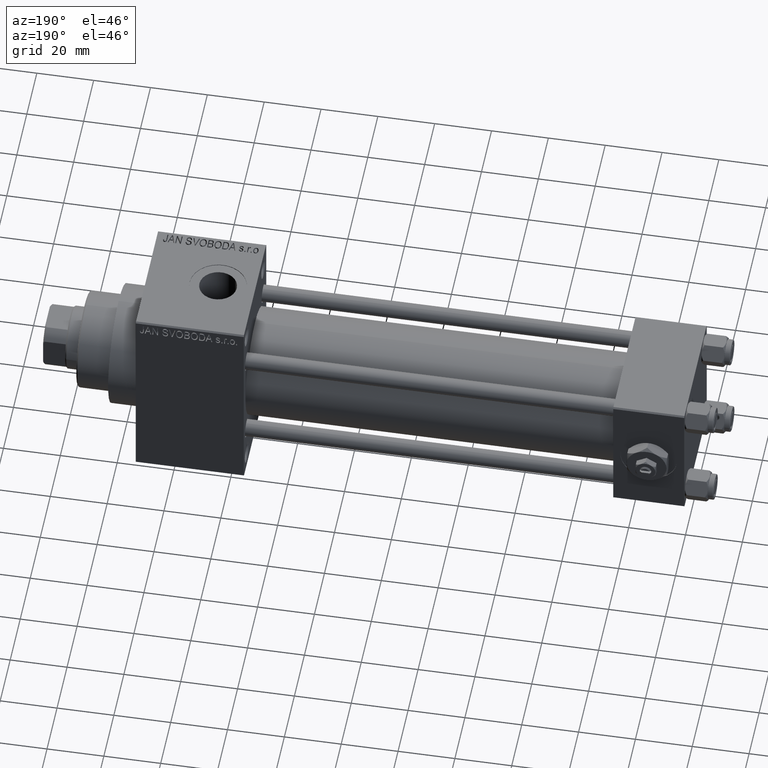
[diagram: clean part render]
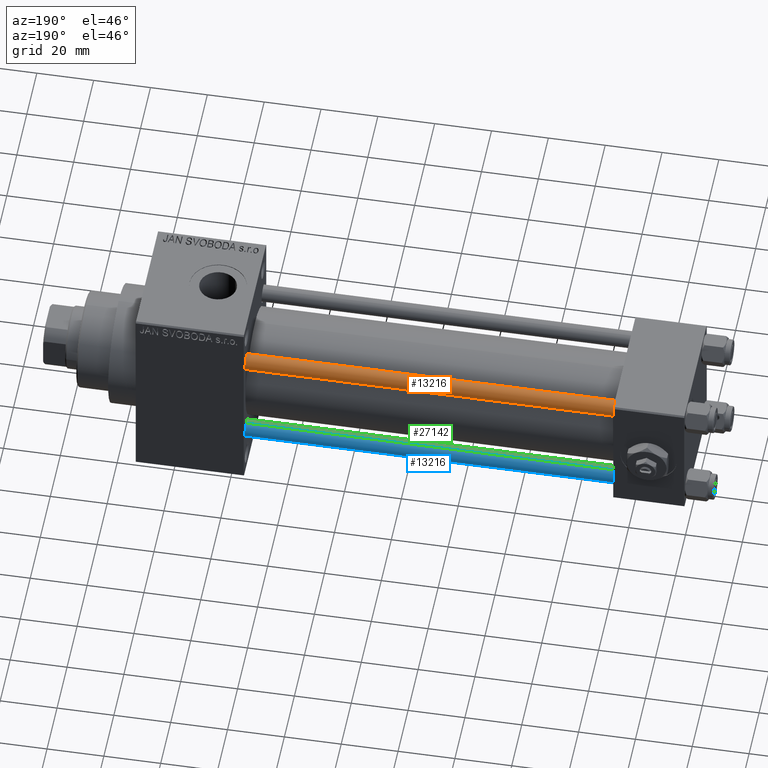
[diagram: same view with three faces highlighted in distinct colors, each labeled with its STEP entity id]
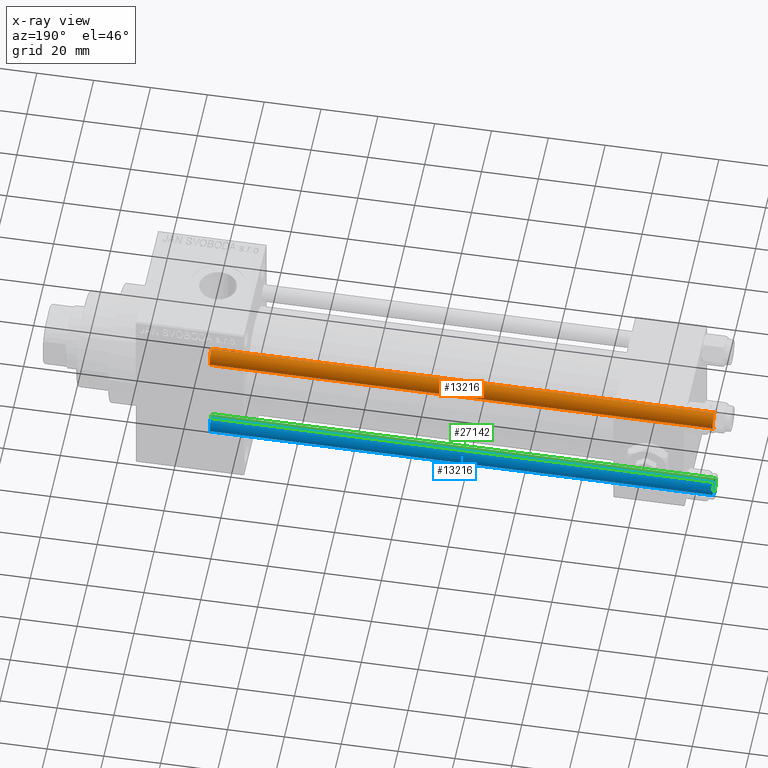
[diagram: x-ray of the same camera — body ghosted, the three highlighted faces saturated]
A machine part, auxiliary view with three faces highlighted in distinct colors.
The next image is the same camera in x-ray (body ghosted, the three faces saturated) — at least one of them is partly hidden behind the body in this view.
Their STEP definitions:

[orange] entity #13216 — the highlighted cylindrical surface (edge-blend (fillet) strip) has radius 3 mm, axis along (-1, -0, 0).
#3153 = VERTEX_POINT ( 'NONE', #22980 ) ;
#6324 = CARTESIAN_POINT ( 'NONE',  ( -3.000000000000000444, 0.000000000000000000, 177.5000000000000000 ) ) ;
#7320 = CYLINDRICAL_SURFACE ( 'NONE', #22730, 3.000000000000000444 ) ;
#7853 = ORIENTED_EDGE ( 'NONE', *, *, #26270, .T. ) ;
#10183 = CARTESIAN_POINT ( 'NONE',  ( 3.000000000000000444, 3.673940397442060361E-16, 178.0000000000000000 ) ) ;
#12575 = ORIENTED_EDGE ( 'NONE', *, *, #21034, .F. ) ;
#13216 = ADVANCED_FACE ( 'NONE', ( #18367 ), #7320, .T. ) ;
#14128 = DIRECTION ( 'NONE',  ( -0.000000000000000000, -0.000000000000000000, -1.000000000000000000 ) ) ;
#15195 = CIRCLE ( 'NONE', #27724, 3.000000000000000444 ) ;
#17183 = VERTEX_POINT ( 'NONE', #6324 ) ;
#18367 = FACE_OUTER_BOUND ( 'NONE', #45082, .T. ) ;
#21034 = EDGE_CURVE ( 'NONE', #17183, #38651, #21490, .T. ) ;
#21490 = LINE ( 'NONE', #33230, #33818 ) ;
#22295 = CARTESIAN_POINT ( 'NONE',  ( 0.000000000000000000, 0.000000000000000000, 178.0000000000000000 ) ) ;
#22532 = DIRECTION ( 'NONE',  ( -0.000000000000000000, -0.000000000000000000, -1.000000000000000000 ) ) ;
#22608 = CIRCLE ( 'NONE', #39857, 3.000000000000000444 ) ;
#22730 = AXIS2_PLACEMENT_3D ( 'NONE', #22295, #22532, #37232 ) ;
#22980 = CARTESIAN_POINT ( 'NONE',  ( 3.000000000000000444, 3.673940397442060361E-16, 177.5000000000000000 ) ) ;
#23918 = VECTOR ( 'NONE', #48228, 1000.000000000000000 ) ;
#24828 = ORIENTED_EDGE ( 'NONE', *, *, #31721, .T. ) ;
#26219 = VERTEX_POINT ( 'NONE', #41266 ) ;
#26270 = EDGE_CURVE ( 'NONE', #26219, #38651, #15195, .T. ) ;
#26301 = CARTESIAN_POINT ( 'NONE',  ( 0.000000000000000000, 0.000000000000000000, 177.5000000000000000 ) ) ;
#27724 = AXIS2_PLACEMENT_3D ( 'NONE', #36852, #48177, #47703 ) ;
#29302 = LINE ( 'NONE', #10183, #23918 ) ;
#29508 = DIRECTION ( 'NONE',  ( 0.000000000000000000, 0.000000000000000000, -1.000000000000000000 ) ) ;
#29995 = DIRECTION ( 'NONE',  ( 1.000000000000000000, 0.000000000000000000, 0.000000000000000000 ) ) ;
#31721 = EDGE_CURVE ( 'NONE', #3153, #26219, #29302, .T. ) ;
#33230 = CARTESIAN_POINT ( 'NONE',  ( -3.000000000000000444, 0.000000000000000000, 178.0000000000000000 ) ) ;
#33798 = CARTESIAN_POINT ( 'NONE',  ( -3.000000000000000444, 0.000000000000000000, 0.5000000000000281997 ) ) ;
#33818 = VECTOR ( 'NONE', #14128, 1000.000000000000000 ) ;
#36852 = CARTESIAN_POINT ( 'NONE',  ( 0.000000000000000000, 0.000000000000000000, 0.5000000000000281997 ) ) ;
#37232 = DIRECTION ( 'NONE',  ( -1.000000000000000000, 0.000000000000000000, 0.000000000000000000 ) ) ;
#38651 = VERTEX_POINT ( 'NONE', #33798 ) ;
#39857 = AXIS2_PLACEMENT_3D ( 'NONE', #26301, #29508, #29995 ) ;
#40267 = ORIENTED_EDGE ( 'NONE', *, *, #40776, .T. ) ;
#40776 = EDGE_CURVE ( 'NONE', #17183, #3153, #22608, .T. ) ;
#41266 = CARTESIAN_POINT ( 'NONE',  ( 3.000000000000000444, 3.673940397442060361E-16, 0.5000000000000281997 ) ) ;
#45082 = EDGE_LOOP ( 'NONE', ( #40267, #24828, #7853, #12575 ) ) ;
#47703 = DIRECTION ( 'NONE',  ( 1.000000000000000000, 0.000000000000000000, 0.000000000000000000 ) ) ;
#48177 = DIRECTION ( 'NONE',  ( -0.000000000000000000, -0.000000000000000000, 1.000000000000000000 ) ) ;
#48228 = DIRECTION ( 'NONE',  ( -0.000000000000000000, -0.000000000000000000, -1.000000000000000000 ) ) ;

[blue] entity #13216 — the highlighted cylindrical surface (edge-blend (fillet) strip) has radius 3 mm, axis along (1, -0, 0).
#3153 = VERTEX_POINT ( 'NONE', #22980 ) ;
#6324 = CARTESIAN_POINT ( 'NONE',  ( -3.000000000000000444, 0.000000000000000000, 177.5000000000000000 ) ) ;
#7320 = CYLINDRICAL_SURFACE ( 'NONE', #22730, 3.000000000000000444 ) ;
#7853 = ORIENTED_EDGE ( 'NONE', *, *, #26270, .T. ) ;
#10183 = CARTESIAN_POINT ( 'NONE',  ( 3.000000000000000444, 3.673940397442060361E-16, 178.0000000000000000 ) ) ;
#12575 = ORIENTED_EDGE ( 'NONE', *, *, #21034, .F. ) ;
#13216 = ADVANCED_FACE ( 'NONE', ( #18367 ), #7320, .T. ) ;
#14128 = DIRECTION ( 'NONE',  ( -0.000000000000000000, -0.000000000000000000, -1.000000000000000000 ) ) ;
#15195 = CIRCLE ( 'NONE', #27724, 3.000000000000000444 ) ;
#17183 = VERTEX_POINT ( 'NONE', #6324 ) ;
#18367 = FACE_OUTER_BOUND ( 'NONE', #45082, .T. ) ;
#21034 = EDGE_CURVE ( 'NONE', #17183, #38651, #21490, .T. ) ;
#21490 = LINE ( 'NONE', #33230, #33818 ) ;
#22295 = CARTESIAN_POINT ( 'NONE',  ( 0.000000000000000000, 0.000000000000000000, 178.0000000000000000 ) ) ;
#22532 = DIRECTION ( 'NONE',  ( -0.000000000000000000, -0.000000000000000000, -1.000000000000000000 ) ) ;
#22608 = CIRCLE ( 'NONE', #39857, 3.000000000000000444 ) ;
#22730 = AXIS2_PLACEMENT_3D ( 'NONE', #22295, #22532, #37232 ) ;
#22980 = CARTESIAN_POINT ( 'NONE',  ( 3.000000000000000444, 3.673940397442060361E-16, 177.5000000000000000 ) ) ;
#23918 = VECTOR ( 'NONE', #48228, 1000.000000000000000 ) ;
#24828 = ORIENTED_EDGE ( 'NONE', *, *, #31721, .T. ) ;
#26219 = VERTEX_POINT ( 'NONE', #41266 ) ;
#26270 = EDGE_CURVE ( 'NONE', #26219, #38651, #15195, .T. ) ;
#26301 = CARTESIAN_POINT ( 'NONE',  ( 0.000000000000000000, 0.000000000000000000, 177.5000000000000000 ) ) ;
#27724 = AXIS2_PLACEMENT_3D ( 'NONE', #36852, #48177, #47703 ) ;
#29302 = LINE ( 'NONE', #10183, #23918 ) ;
#29508 = DIRECTION ( 'NONE',  ( 0.000000000000000000, 0.000000000000000000, -1.000000000000000000 ) ) ;
#29995 = DIRECTION ( 'NONE',  ( 1.000000000000000000, 0.000000000000000000, 0.000000000000000000 ) ) ;
#31721 = EDGE_CURVE ( 'NONE', #3153, #26219, #29302, .T. ) ;
#33230 = CARTESIAN_POINT ( 'NONE',  ( -3.000000000000000444, 0.000000000000000000, 178.0000000000000000 ) ) ;
#33798 = CARTESIAN_POINT ( 'NONE',  ( -3.000000000000000444, 0.000000000000000000, 0.5000000000000281997 ) ) ;
#33818 = VECTOR ( 'NONE', #14128, 1000.000000000000000 ) ;
#36852 = CARTESIAN_POINT ( 'NONE',  ( 0.000000000000000000, 0.000000000000000000, 0.5000000000000281997 ) ) ;
#37232 = DIRECTION ( 'NONE',  ( -1.000000000000000000, 0.000000000000000000, 0.000000000000000000 ) ) ;
#38651 = VERTEX_POINT ( 'NONE', #33798 ) ;
#39857 = AXIS2_PLACEMENT_3D ( 'NONE', #26301, #29508, #29995 ) ;
#40267 = ORIENTED_EDGE ( 'NONE', *, *, #40776, .T. ) ;
#40776 = EDGE_CURVE ( 'NONE', #17183, #3153, #22608, .T. ) ;
#41266 = CARTESIAN_POINT ( 'NONE',  ( 3.000000000000000444, 3.673940397442060361E-16, 0.5000000000000281997 ) ) ;
#45082 = EDGE_LOOP ( 'NONE', ( #40267, #24828, #7853, #12575 ) ) ;
#47703 = DIRECTION ( 'NONE',  ( 1.000000000000000000, 0.000000000000000000, 0.000000000000000000 ) ) ;
#48177 = DIRECTION ( 'NONE',  ( -0.000000000000000000, -0.000000000000000000, 1.000000000000000000 ) ) ;
#48228 = DIRECTION ( 'NONE',  ( -0.000000000000000000, -0.000000000000000000, -1.000000000000000000 ) ) ;

[green] entity #27142 — the highlighted cylindrical surface (edge-blend (fillet) strip) has radius 3 mm, axis along (1, -0, 0).
#674 = CIRCLE ( 'NONE', #13205, 3.000000000000000444 ) ;
#2046 = DIRECTION ( 'NONE',  ( -0.000000000000000000, -0.000000000000000000, -1.000000000000000000 ) ) ;
#3153 = VERTEX_POINT ( 'NONE', #22980 ) ;
#5464 = EDGE_CURVE ( 'NONE', #3153, #17183, #674, .T. ) ;
#6324 = CARTESIAN_POINT ( 'NONE',  ( -3.000000000000000444, 0.000000000000000000, 177.5000000000000000 ) ) ;
#9415 = CARTESIAN_POINT ( 'NONE',  ( 0.000000000000000000, 0.000000000000000000, 178.0000000000000000 ) ) ;
#10183 = CARTESIAN_POINT ( 'NONE',  ( 3.000000000000000444, 3.673940397442060361E-16, 178.0000000000000000 ) ) ;
#13094 = FACE_OUTER_BOUND ( 'NONE', #32336, .T. ) ;
#13205 = AXIS2_PLACEMENT_3D ( 'NONE', #34790, #16162, #15923 ) ;
#14128 = DIRECTION ( 'NONE',  ( -0.000000000000000000, -0.000000000000000000, -1.000000000000000000 ) ) ;
#15923 = DIRECTION ( 'NONE',  ( 1.000000000000000000, 0.000000000000000000, 0.000000000000000000 ) ) ;
#16162 = DIRECTION ( 'NONE',  ( 0.000000000000000000, 0.000000000000000000, -1.000000000000000000 ) ) ;
#16717 = ORIENTED_EDGE ( 'NONE', *, *, #36534, .T. ) ;
#17183 = VERTEX_POINT ( 'NONE', #6324 ) ;
#19326 = AXIS2_PLACEMENT_3D ( 'NONE', #29196, #28702, #36069 ) ;
#20967 = ORIENTED_EDGE ( 'NONE', *, *, #5464, .T. ) ;
#21034 = EDGE_CURVE ( 'NONE', #17183, #38651, #21490, .T. ) ;
#21490 = LINE ( 'NONE', #33230, #33818 ) ;
#21719 = CIRCLE ( 'NONE', #19326, 3.000000000000000444 ) ;
#22980 = CARTESIAN_POINT ( 'NONE',  ( 3.000000000000000444, 3.673940397442060361E-16, 177.5000000000000000 ) ) ;
#23291 = ORIENTED_EDGE ( 'NONE', *, *, #31721, .F. ) ;
#23669 = DIRECTION ( 'NONE',  ( -1.000000000000000000, 0.000000000000000000, 0.000000000000000000 ) ) ;
#23918 = VECTOR ( 'NONE', #48228, 1000.000000000000000 ) ;
#24065 = ORIENTED_EDGE ( 'NONE', *, *, #21034, .T. ) ;
#26219 = VERTEX_POINT ( 'NONE', #41266 ) ;
#27142 = ADVANCED_FACE ( 'NONE', ( #13094 ), #31267, .T. ) ;
#28702 = DIRECTION ( 'NONE',  ( -0.000000000000000000, -0.000000000000000000, 1.000000000000000000 ) ) ;
#29196 = CARTESIAN_POINT ( 'NONE',  ( 0.000000000000000000, 0.000000000000000000, 0.5000000000000281997 ) ) ;
#29302 = LINE ( 'NONE', #10183, #23918 ) ;
#31267 = CYLINDRICAL_SURFACE ( 'NONE', #37135, 3.000000000000000444 ) ;
#31721 = EDGE_CURVE ( 'NONE', #3153, #26219, #29302, .T. ) ;
#32336 = EDGE_LOOP ( 'NONE', ( #23291, #20967, #24065, #16717 ) ) ;
#33230 = CARTESIAN_POINT ( 'NONE',  ( -3.000000000000000444, 0.000000000000000000, 178.0000000000000000 ) ) ;
#33798 = CARTESIAN_POINT ( 'NONE',  ( -3.000000000000000444, 0.000000000000000000, 0.5000000000000281997 ) ) ;
#33818 = VECTOR ( 'NONE', #14128, 1000.000000000000000 ) ;
#34790 = CARTESIAN_POINT ( 'NONE',  ( 0.000000000000000000, 0.000000000000000000, 177.5000000000000000 ) ) ;
#36069 = DIRECTION ( 'NONE',  ( 1.000000000000000000, 0.000000000000000000, 0.000000000000000000 ) ) ;
#36534 = EDGE_CURVE ( 'NONE', #38651, #26219, #21719, .T. ) ;
#37135 = AXIS2_PLACEMENT_3D ( 'NONE', #9415, #2046, #23669 ) ;
#38651 = VERTEX_POINT ( 'NONE', #33798 ) ;
#41266 = CARTESIAN_POINT ( 'NONE',  ( 3.000000000000000444, 3.673940397442060361E-16, 0.5000000000000281997 ) ) ;
#48228 = DIRECTION ( 'NONE',  ( -0.000000000000000000, -0.000000000000000000, -1.000000000000000000 ) ) ;